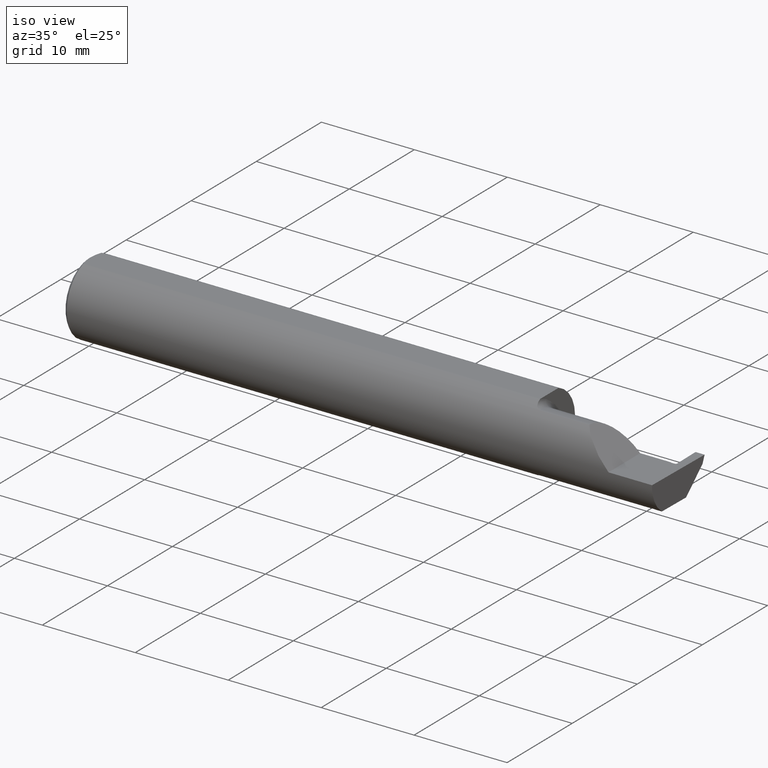
[diagram: clean part render]
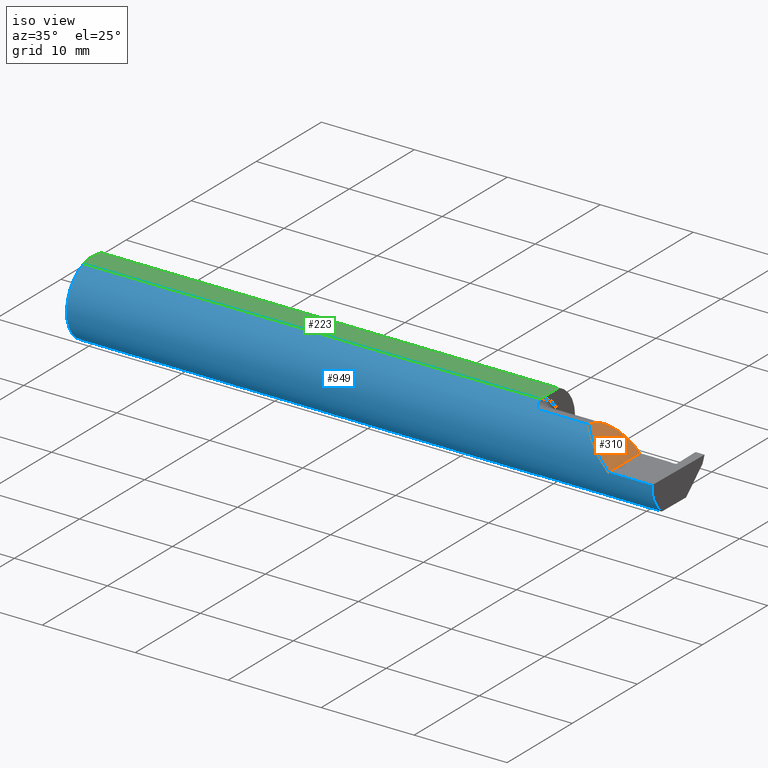
[diagram: same view with three faces highlighted in distinct colors, each labeled with its STEP entity id]
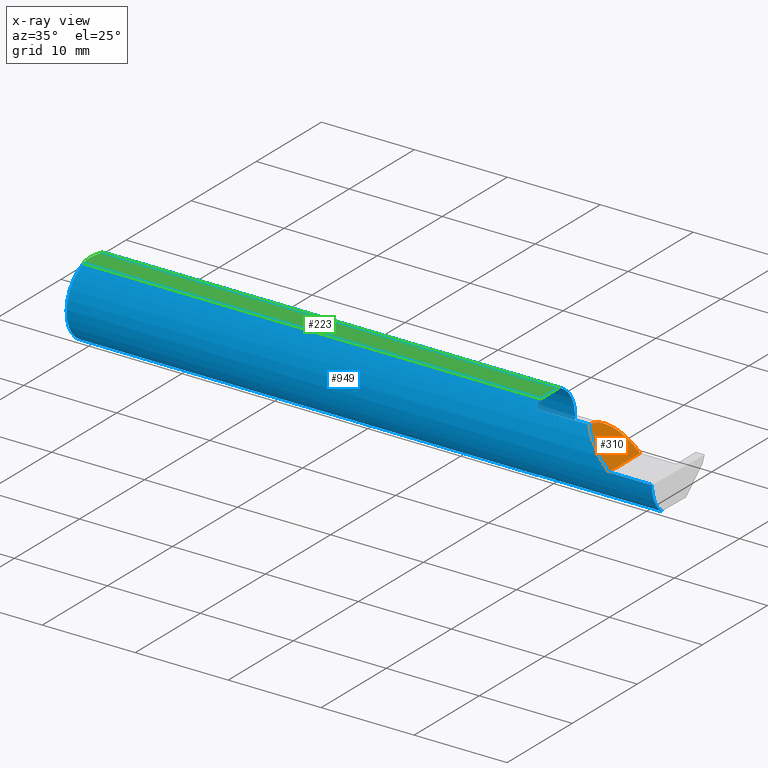
[diagram: x-ray of the same camera — body ghosted, the three highlighted faces saturated]
A machine part, iso view with three faces highlighted in distinct colors.
The next image is the same camera in x-ray (body ghosted, the three faces saturated) — at least one of them is partly hidden behind the body in this view.
Their STEP definitions:

[orange] entity #310 — the highlighted planar face has unit normal (-0.7071, 0, -0.7071).
#24 = CARTESIAN_POINT ( 'NONE',  ( 2.185081329771848768, -0.09360841750841755737, 0.1249186702281519651 ) ) ;
#46 = CARTESIAN_POINT ( 'NONE',  ( 2.310000000000000053, 0.03589999999999998748, 2.326828918379970872E-17 ) ) ;
#64 = CARTESIAN_POINT ( 'NONE',  ( 2.185000000000000941, -0.01587669529663685714, 0.1250000000000000278 ) ) ;
#117 = AXIS2_PLACEMENT_3D ( 'NONE', #573, #1000, #322 ) ;
#140 = EDGE_CURVE ( 'NONE', #263, #144, #164, .T. ) ;
#144 = VERTEX_POINT ( 'NONE', #24 ) ;
#146 = DIRECTION ( 'NONE',  ( -0.000000000000000000, 1.000000000000000000, -0.000000000000000000 ) ) ;
#164 =( BOUNDED_CURVE ( )  B_SPLINE_CURVE ( 3, ( #698, #194, #794, #1040 ),
 .UNSPECIFIED., .F., .T. ) 
 B_SPLINE_CURVE_WITH_KNOTS ( ( 4, 4 ),
 ( 4.712388980384689674, 5.640097190903853530 ),
 .UNSPECIFIED. ) 
 CURVE ( )  GEOMETRIC_REPRESENTATION_ITEM ( )  RATIONAL_B_SPLINE_CURVE ( ( 1.000000000000000000, 0.9295565493311498395, 0.9295565493311498395, 1.000000000000000000 ) ) 
 REPRESENTATION_ITEM ( '' )  );
#170 = VERTEX_POINT ( 'NONE', #46 ) ;
#175 = ORIENTED_EDGE ( 'NONE', *, *, #140, .F. ) ;
#194 = CARTESIAN_POINT ( 'NONE',  ( 2.259912409421232837, -0.1560999999999999888, 0.05008759057876772947 ) ) ;
#207 = EDGE_CURVE ( 'NONE', #1062, #170, #395, .T. ) ;
#242 = PLANE ( 'NONE',  #117 ) ;
#263 = VERTEX_POINT ( 'NONE', #973 ) ;
#310 = ADVANCED_FACE ( 'NONE', ( #329 ), #242, .F. ) ;
#312 = LINE ( 'NONE', #490, #786 ) ;
#322 = DIRECTION ( 'NONE',  ( -0.7071067811865459074, 0.000000000000000000, 0.7071067811865492381 ) ) ;
#329 = FACE_OUTER_BOUND ( 'NONE', #766, .T. ) ;
#330 = CARTESIAN_POINT ( 'NONE',  ( 2.185000000000000941, -0.09060321336276840054, 0.1250000000000000278 ) ) ;
#344 = EDGE_CURVE ( 'NONE', #263, #170, #312, .T. ) ;
#395 =( BOUNDED_CURVE ( )  B_SPLINE_CURVE ( 3, ( #810, #64, #741, #727 ),
 .UNSPECIFIED., .F., .F. ) 
 B_SPLINE_CURVE_WITH_KNOTS ( ( 4, 4 ),
 ( 0.000000000000000000, 1.570796326794896558 ),
 .UNSPECIFIED. ) 
 CURVE ( )  GEOMETRIC_REPRESENTATION_ITEM ( )  RATIONAL_B_SPLINE_CURVE ( ( 1.000000000000000000, 0.8047378541243649375, 0.8047378541243649375, 1.000000000000000000 ) ) 
 REPRESENTATION_ITEM ( '' )  );
#434 =( BOUNDED_CURVE ( )  B_SPLINE_CURVE ( 3, ( #750, #568, #330, #1065 ),
 .UNSPECIFIED., .F., .T. ) 
 B_SPLINE_CURVE_WITH_KNOTS ( ( 4, 4 ),
 ( 6.247110142813122380, 6.283185307179586232 ),
 .UNSPECIFIED. ) 
 CURVE ( )  GEOMETRIC_REPRESENTATION_ITEM ( )  RATIONAL_B_SPLINE_CURVE ( ( 1.000000000000000000, 0.9998915514833921492, 0.9998915514833921492, 1.000000000000000000 ) ) 
 REPRESENTATION_ITEM ( '' )  );
#488 = ORIENTED_EDGE ( 'NONE', *, *, #1024, .F. ) ;
#490 = CARTESIAN_POINT ( 'NONE',  ( 2.310000000000000053, -0.2000000000000000111, 2.326828918379970872E-17 ) ) ;
#568 = CARTESIAN_POINT ( 'NONE',  ( 2.185027112864299959, -0.09210618219364782866, 0.1249728871357007748 ) ) ;
#573 = CARTESIAN_POINT ( 'NONE',  ( 2.310000000000000053, -0.2000000000000000111, 2.326828918379970872E-17 ) ) ;
#698 = CARTESIAN_POINT ( 'NONE',  ( 2.310000000000000053, -0.1560999999999999888, 2.326828918379970872E-17 ) ) ;
#727 = CARTESIAN_POINT ( 'NONE',  ( 2.310000000000000053, 0.03589999999999998748, 2.326828918379970872E-17 ) ) ;
#741 = CARTESIAN_POINT ( 'NONE',  ( 2.236776695296637474, 0.03590000000000000829, 0.07322330470336313457 ) ) ;
#750 = CARTESIAN_POINT ( 'NONE',  ( 2.185081329771848768, -0.09360841750841755737, 0.1249186702281519651 ) ) ;
#766 = EDGE_LOOP ( 'NONE', ( #488, #175, #1021, #778 ) ) ;
#778 = ORIENTED_EDGE ( 'NONE', *, *, #207, .F. ) ;
#786 = VECTOR ( 'NONE', #146, 39.37007874015748143 ) ;
#794 = CARTESIAN_POINT ( 'NONE',  ( 2.215117332916550552, -0.1336908980339254205, 0.09488266708345004241 ) ) ;
#810 = CARTESIAN_POINT ( 'NONE',  ( 2.185000000000000941, -0.08909999999999998477, 0.1250000000000000000 ) ) ;
#973 = CARTESIAN_POINT ( 'NONE',  ( 2.310000000000000053, -0.1560999999999999888, 2.326828918379970872E-17 ) ) ;
#995 = CARTESIAN_POINT ( 'NONE',  ( 2.185000000000000941, -0.08909999999999998477, 0.1250000000000000000 ) ) ;
#1000 = DIRECTION ( 'NONE',  ( -0.7071067811865492381, 0.000000000000000000, -0.7071067811865459074 ) ) ;
#1021 = ORIENTED_EDGE ( 'NONE', *, *, #344, .T. ) ;
#1024 = EDGE_CURVE ( 'NONE', #144, #1062, #434, .T. ) ;
#1040 = CARTESIAN_POINT ( 'NONE',  ( 2.185081329771848768, -0.09360841750841755737, 0.1249186702281519651 ) ) ;
#1062 = VERTEX_POINT ( 'NONE', #995 ) ;
#1065 = CARTESIAN_POINT ( 'NONE',  ( 2.185000000000000941, -0.08909999999999998477, 0.1250000000000000000 ) ) ;

[blue] entity #949 — the highlighted cylindrical surface (partial cylindrical patch) has radius 3.9649 mm, axis along (-1, -0, -0).
#2 = CARTESIAN_POINT ( 'NONE',  ( 2.460758433086303043, -0.09641453430756345699, -0.1227658241297457653 ) ) ;
#4 = CARTESIAN_POINT ( 'NONE',  ( 1.949999999999999734, -0.05502817059483720158, 0.1460791239054557156 ) ) ;
#12 = CARTESIAN_POINT ( 'NONE',  ( 1.949999999999999734, -0.05502817059483720158, -0.1460791239054557156 ) ) ;
#24 = CARTESIAN_POINT ( 'NONE',  ( 2.185081329771848768, -0.09360841750841755737, 0.1249186702281519651 ) ) ;
#30 = EDGE_CURVE ( 'NONE', #570, #692, #465, .T. ) ;
#42 = EDGE_CURVE ( 'NONE', #625, #933, #754, .T. ) ;
#59 = ORIENTED_EDGE ( 'NONE', *, *, #895, .F. ) ;
#61 = CARTESIAN_POINT ( 'NONE',  ( 2.444883274121979699, -0.09430675028159224427, -0.1243953711434615111 ) ) ;
#63 = B_SPLINE_CURVE_WITH_KNOTS ( 'NONE', 3,
 ( #420, #345, #682, #1020 ),
 .UNSPECIFIED., .F., .F.,
 ( 4, 4 ),
 ( 1.958690481382186847E-07, 0.0003463854958010656741 ),
 .UNSPECIFIED. ) ;
#69 = CARTESIAN_POINT ( 'NONE',  ( 2.493277140361873201, -0.1561000000000000165, -0.05008759057876776416 ) ) ;
#76 = CARTESIAN_POINT ( 'NONE',  ( 2.455151538110904585, -0.09614405354417178418, -0.1229778195475450392 ) ) ;
#77 = ORIENTED_EDGE ( 'NONE', *, *, #878, .F. ) ;
#78 = B_SPLINE_CURVE_WITH_KNOTS ( 'NONE', 3,
 ( #274, #885, #61, #566 ),
 .UNSPECIFIED., .F., .F.,
 ( 4, 4 ),
 ( 5.293749646857445613E-18, 7.520689195611335071E-05 ),
 .UNSPECIFIED. ) ;
#84 = CARTESIAN_POINT ( 'NONE',  ( 1.960319203512566055, -0.08709887368156789267, 0.1295644080582773749 ) ) ;
#96 = DIRECTION ( 'NONE',  ( 1.000000000000000000, 0.000000000000000000, 0.000000000000000000 ) ) ;
#104 = EDGE_CURVE ( 'NONE', #833, #625, #477, .T. ) ;
#105 = CARTESIAN_POINT ( 'NONE',  ( 2.494588929872255001, -0.1561000000000000443, 0.000000000000000000 ) ) ;
#115 = CARTESIAN_POINT ( 'NONE',  ( 1.949999999999999734, -0.05502817059483720158, 0.1460791239054557156 ) ) ;
#122 = VERTEX_POINT ( 'NONE', #546 ) ;
#126 = CARTESIAN_POINT ( 'NONE',  ( 2.460758433086303043, -0.09641453430756345699, -0.1227658241297457653 ) ) ;
#140 = EDGE_CURVE ( 'NONE', #263, #144, #164, .T. ) ;
#144 = VERTEX_POINT ( 'NONE', #24 ) ;
#149 = LINE ( 'NONE', #1066, #256 ) ;
#150 = VERTEX_POINT ( 'NONE', #115 ) ;
#156 = DIRECTION ( 'NONE',  ( -1.000000000000000000, -0.000000000000000000, -0.000000000000000000 ) ) ;
#164 =( BOUNDED_CURVE ( )  B_SPLINE_CURVE ( 3, ( #698, #194, #794, #1040 ),
 .UNSPECIFIED., .F., .T. ) 
 B_SPLINE_CURVE_WITH_KNOTS ( ( 4, 4 ),
 ( 4.712388980384689674, 5.640097190903853530 ),
 .UNSPECIFIED. ) 
 CURVE ( )  GEOMETRIC_REPRESENTATION_ITEM ( )  RATIONAL_B_SPLINE_CURVE ( ( 1.000000000000000000, 0.9295565493311498395, 0.9295565493311498395, 1.000000000000000000 ) ) 
 REPRESENTATION_ITEM ( '' )  );
#177 = CARTESIAN_POINT ( 'NONE',  ( 2.453282581884050462, -0.09605366783568212996, -0.1230484297883021605 ) ) ;
#180 = AXIS2_PLACEMENT_3D ( 'NONE', #1043, #212, #615 ) ;
#181 = CARTESIAN_POINT ( 'NONE',  ( 2.460758433086303043, -0.09641453430756345699, -0.1227658241297457653 ) ) ;
#184 = EDGE_CURVE ( 'NONE', #439, #188, #149, .T. ) ;
#188 = VERTEX_POINT ( 'NONE', #1053 ) ;
#189 = CIRCLE ( 'NONE', #1009, 0.1560999999999999888 ) ;
#190 = EDGE_CURVE ( 'NONE', #818, #263, #822, .T. ) ;
#194 = CARTESIAN_POINT ( 'NONE',  ( 2.259912409421232837, -0.1560999999999999888, 0.05008759057876772947 ) ) ;
#195 = AXIS2_PLACEMENT_3D ( 'NONE', #516, #96, #757 ) ;
#200 = EDGE_CURVE ( 'NONE', #1032, #144, #317, .T. ) ;
#203 = ORIENTED_EDGE ( 'NONE', *, *, #979, .F. ) ;
#212 = DIRECTION ( 'NONE',  ( -1.000000000000000000, -0.000000000000000000, -0.000000000000000000 ) ) ;
#216 = VERTEX_POINT ( 'NONE', #722 ) ;
#243 = CARTESIAN_POINT ( 'NONE',  ( 1.974999999999999867, -0.09360841750841747411, 0.1249186702281520206 ) ) ;
#256 = VECTOR ( 'NONE', #487, 39.37007874015748143 ) ;
#257 = CARTESIAN_POINT ( 'NONE',  ( 2.451413631736417464, -0.09596312630643989705, -0.1231190009279407582 ) ) ;
#260 = CARTESIAN_POINT ( 'NONE',  ( 1.949999999999999512, -0.06156212810510084538, 0.1436177747480845979 ) ) ;
#262 = CARTESIAN_POINT ( 'NONE',  ( 2.457020500426053911, -0.09623428318624049904, -0.1229071712294707436 ) ) ;
#263 = VERTEX_POINT ( 'NONE', #973 ) ;
#264 = CYLINDRICAL_SURFACE ( 'NONE', #705, 0.1560999999999999888 ) ;
#274 = CARTESIAN_POINT ( 'NONE',  ( 2.445806799314936164, -0.09569103450145266532, -0.1233305960256488032 ) ) ;
#282 = CARTESIAN_POINT ( 'NONE',  ( 2.465372530024502407, -0.09436784564007082154, -0.1243495890372814661 ) ) ;
#293 = CARTESIAN_POINT ( 'NONE',  ( 3.749399456654646757E-32, -0.1560999999999999888, 3.061616997868384127E-16 ) ) ;
#313 = CARTESIAN_POINT ( 'NONE',  ( 2.492495113650786021, -0.1336908980339254205, -0.09488266708345007017 ) ) ;
#314 = ORIENTED_EDGE ( 'NONE', *, *, #184, .F. ) ;
#317 = LINE ( 'NONE', #396, #875 ) ;
#321 = EDGE_CURVE ( 'NONE', #608, #1032, #502, .T. ) ;
#326 = CARTESIAN_POINT ( 'NONE',  ( 2.445806799314936164, -0.09569103450145266532, -0.1233305960256488032 ) ) ;
#328 = B_SPLINE_CURVE_WITH_KNOTS ( 'NONE', 3,
 ( #1072, #665, #1006, #481, #740, #590, #919, #496 ),
 .UNSPECIFIED., .F., .F.,
 ( 4, 2, 2, 4 ),
 ( 0.0003463854958010656741, 0.0006107451645895129117, 0.0008751048333779602034, 0.001403824170954859774 ),
 .UNSPECIFIED. ) ;
#333 = CARTESIAN_POINT ( 'NONE',  ( 2.444421270371395227, -0.09360841750841732145, -0.1249186702281520206 ) ) ;
#336 = ORIENTED_EDGE ( 'NONE', *, *, #190, .T. ) ;
#339 = CARTESIAN_POINT ( 'NONE',  ( 0.01499999999999999944, 0.000000000000000000, -0.1560999999999999888 ) ) ;
#340 = CARTESIAN_POINT ( 'NONE',  ( 1.950844056398637116, -0.06777540567362902446, 0.1407770456887921517 ) ) ;
#345 = CARTESIAN_POINT ( 'NONE',  ( 1.970361275910303522, -0.09360841750841759901, -0.1249186702281519512 ) ) ;
#362 = CARTESIAN_POINT ( 'NONE',  ( 2.462958620952170552, -0.09612681111944289258, -0.1229930763061728438 ) ) ;
#369 = ORIENTED_EDGE ( 'NONE', *, *, #681, .F. ) ;
#371 = CARTESIAN_POINT ( 'NONE',  ( 2.215749999999999886, -0.09360841750841747411, -0.1249186702281520206 ) ) ;
#378 = CIRCLE ( 'NONE', #180, 0.1560999999999999888 ) ;
#396 = CARTESIAN_POINT ( 'NONE',  ( 2.215749999999999886, -0.09360841750841747411, 0.1249186702281520206 ) ) ;
#408 = CARTESIAN_POINT ( 'NONE',  ( 2.465920927715513855, -0.09360841750841732145, -0.1249186702281520484 ) ) ;
#420 = CARTESIAN_POINT ( 'NONE',  ( 1.974999999999999867, -0.09360841750841744635, -0.1249186702281520206 ) ) ;
#429 = DIRECTION ( 'NONE',  ( -1.000000000000000000, -0.000000000000000000, -0.000000000000000000 ) ) ;
#439 = VERTEX_POINT ( 'NONE', #333 ) ;
#440 = CARTESIAN_POINT ( 'NONE',  ( 0.01499999999999999944, 0.000000000000000000, 0.000000000000000000 ) ) ;
#443 = ORIENTED_EDGE ( 'NONE', *, *, #321, .F. ) ;
#446 = CARTESIAN_POINT ( 'NONE',  ( 2.461870861435892621, -0.09646811579188419028, -0.1227237437389290531 ) ) ;
#460 = EDGE_CURVE ( 'NONE', #150, #608, #529, .T. ) ;
#465 = CIRCLE ( 'NONE', #195, 0.1560999999999999888 ) ;
#471 = ORIENTED_EDGE ( 'NONE', *, *, #200, .F. ) ;
#473 = DIRECTION ( 'NONE',  ( 1.000000000000000000, 0.000000000000000000, 0.000000000000000000 ) ) ;
#477 = B_SPLINE_CURVE_WITH_KNOTS ( 'NONE', 3,
 ( #947, #282, #704, #362, #446, #126 ),
 .UNSPECIFIED., .F., .F.,
 ( 4, 2, 4 ),
 ( 0.0002236889353495204289, 0.0003060019729275876427, 0.0003883150105056549107 ),
 .UNSPECIFIED. ) ;
#479 = CARTESIAN_POINT ( 'NONE',  ( 0.000000000000000000, 0.05497272050753900657, 0.1460999999999999799 ) ) ;
#481 = CARTESIAN_POINT ( 'NONE',  ( 1.955057722617701499, -0.07943655142502265010, -0.1344116409581927740 ) ) ;
#487 = DIRECTION ( 'NONE',  ( -1.000000000000000000, -0.000000000000000000, -0.000000000000000000 ) ) ;
#495 = CARTESIAN_POINT ( 'NONE',  ( 1.962810002172222568, -0.08909999999984934138, 0.1281733201569306146 ) ) ;
#496 = CARTESIAN_POINT ( 'NONE',  ( 1.949999999999999734, -0.05502817059483720158, -0.1460791239054557156 ) ) ;
#502 = B_SPLINE_CURVE_WITH_KNOTS ( 'NONE', 3,
 ( #495, #820, #749, #589 ),
 .UNSPECIFIED., .F., .F.,
 ( 4, 4 ),
 ( 0.001050593969402363994, 0.001393966686689414704 ),
 .UNSPECIFIED. ) ;
#506 = ORIENTED_EDGE ( 'NONE', *, *, #603, .F. ) ;
#508 = CARTESIAN_POINT ( 'NONE',  ( 1.953785422859119603, -0.07659497035394365050, 0.1360571150960169506 ) ) ;
#516 = CARTESIAN_POINT ( 'NONE',  ( 1.949999999999999734, 0.000000000000000000, 0.000000000000000000 ) ) ;
#526 = ORIENTED_EDGE ( 'NONE', *, *, #824, .F. ) ;
#529 = B_SPLINE_CURVE_WITH_KNOTS ( 'NONE', 3,
 ( #4, #260, #340, #508, #689, #932, #84, #1017 ),
 .UNSPECIFIED., .F., .F.,
 ( 4, 2, 2, 4 ),
 ( 2.042507625483139074E-06, 0.0005263182385139235754, 0.0007884561039581438387, 0.001050593969402363994 ),
 .UNSPECIFIED. ) ;
#541 = ORIENTED_EDGE ( 'NONE', *, *, #42, .F. ) ;
#542 = LINE ( 'NONE', #371, #1048 ) ;
#546 = CARTESIAN_POINT ( 'NONE',  ( 0.01499999999999999771, 0.05497272050753900657, 0.1460999999999999799 ) ) ;
#560 = CARTESIAN_POINT ( 'NONE',  ( 0.000000000000000000, -0.05497272050753900657, 0.1460999999999999799 ) ) ;
#566 = CARTESIAN_POINT ( 'NONE',  ( 2.444421270371395227, -0.09360841750841732145, -0.1249186702281520206 ) ) ;
#570 = VERTEX_POINT ( 'NONE', #12 ) ;
#589 = CARTESIAN_POINT ( 'NONE',  ( 1.974999999999999867, -0.09360841750841747411, 0.1249186702281520206 ) ) ;
#590 = CARTESIAN_POINT ( 'NONE',  ( 1.950847904676645150, -0.06780574120017830719, -0.1407631332654325773 ) ) ;
#595 = CARTESIAN_POINT ( 'NONE',  ( 2.447675737396382001, -0.09578188742118470822, -0.1232601041107730250 ) ) ;
#601 = ORIENTED_EDGE ( 'NONE', *, *, #1060, .T. ) ;
#603 = EDGE_CURVE ( 'NONE', #188, #884, #63, .T. ) ;
#608 = VERTEX_POINT ( 'NONE', #855 ) ;
#615 = DIRECTION ( 'NONE',  ( 0.000000000000000000, 0.000000000000000000, 1.000000000000000000 ) ) ;
#625 = VERTEX_POINT ( 'NONE', #181 ) ;
#630 = ORIENTED_EDGE ( 'NONE', *, *, #30, .F. ) ;
#637 = AXIS2_PLACEMENT_3D ( 'NONE', #440, #429, #860 ) ;
#648 = EDGE_CURVE ( 'NONE', #122, #991, #378, .T. ) ;
#658 = ORIENTED_EDGE ( 'NONE', *, *, #870, .F. ) ;
#665 = CARTESIAN_POINT ( 'NONE',  ( 1.960315048287043505, -0.08709553534231938288, -0.1295667287130568279 ) ) ;
#668 = VECTOR ( 'NONE', #473, 39.37007874015748143 ) ;
#681 = EDGE_CURVE ( 'NONE', #746, #833, #542, .T. ) ;
#682 = CARTESIAN_POINT ( 'NONE',  ( 1.966077244708472893, -0.09172492714866099794, -0.1263485955677197681 ) ) ;
#689 = CARTESIAN_POINT ( 'NONE',  ( 1.955056522840238342, -0.07943464720522702693, 0.1344128205797975040 ) ) ;
#692 = VERTEX_POINT ( 'NONE', #876 ) ;
#698 = CARTESIAN_POINT ( 'NONE',  ( 2.310000000000000053, -0.1560999999999999888, 2.326828918379970872E-17 ) ) ;
#704 = CARTESIAN_POINT ( 'NONE',  ( 2.464692907515819265, -0.09506543444703710599, -0.1238152809981272195 ) ) ;
#705 = AXIS2_PLACEMENT_3D ( 'NONE', #1026, #1016, #850 ) ;
#722 = CARTESIAN_POINT ( 'NONE',  ( 0.01499999999999999944, -0.05497272050753900657, 0.1460999999999999799 ) ) ;
#736 = EDGE_LOOP ( 'NONE', ( #369, #601, #336, #1047, #471, #443, #916, #77, #658, #203, #758, #59, #630, #1074, #506, #314, #526, #541, #1007 ) ) ;
#740 = CARTESIAN_POINT ( 'NONE',  ( 1.953804698179400168, -0.07664326672408301733, -0.1360300949145557547 ) ) ;
#746 = VERTEX_POINT ( 'NONE', #962 ) ;
#748 = LINE ( 'NONE', #560, #668 ) ;
#749 = CARTESIAN_POINT ( 'NONE',  ( 1.970364775055372553, -0.09360841750841757125, 0.1249186702281519512 ) ) ;
#754 = B_SPLINE_CURVE_WITH_KNOTS ( 'NONE', 3,
 ( #2, #1018, #1087, #262, #76, #177, #257, #1002, #595, #326 ),
 .UNSPECIFIED., .F., .F.,
 ( 4, 3, 3, 4 ),
 ( 0.000000000000000000, 9.512159278853818574E-05, 0.0002378039862949639675, 0.0003804863840084716435 ),
 .UNSPECIFIED. ) ;
#757 = DIRECTION ( 'NONE',  ( 0.000000000000000000, 0.000000000000000000, -1.000000000000000000 ) ) ;
#758 = ORIENTED_EDGE ( 'NONE', *, *, #648, .F. ) ;
#767 = FACE_OUTER_BOUND ( 'NONE', #736, .T. ) ;
#794 = CARTESIAN_POINT ( 'NONE',  ( 2.215117332916550552, -0.1336908980339254205, 0.09488266708345004241 ) ) ;
#798 = DIRECTION ( 'NONE',  ( -1.000000000000000000, -0.000000000000000000, -0.000000000000000000 ) ) ;
#818 = VERTEX_POINT ( 'NONE', #105 ) ;
#819 = DIRECTION ( 'NONE',  ( 0.000000000000000000, 0.000000000000000000, -1.000000000000000000 ) ) ;
#820 = CARTESIAN_POINT ( 'NONE',  ( 1.966072683443917946, -0.09172126259464279119, 0.1263511429915041839 ) ) ;
#822 = LINE ( 'NONE', #293, #927 ) ;
#824 = EDGE_CURVE ( 'NONE', #933, #439, #78, .T. ) ;
#825 = DIRECTION ( 'NONE',  ( 1.000000000000000000, 0.000000000000000000, 0.000000000000000000 ) ) ;
#827 = CARTESIAN_POINT ( 'NONE',  ( 2.494588929872255001, -0.1561000000000000443, 0.000000000000000000 ) ) ;
#833 = VERTEX_POINT ( 'NONE', #408 ) ;
#850 = DIRECTION ( 'NONE',  ( 0.000000000000000000, 0.000000000000000000, 1.000000000000000000 ) ) ;
#855 = CARTESIAN_POINT ( 'NONE',  ( 1.962810002172222568, -0.08909999999984934138, 0.1281733201569306146 ) ) ;
#860 = DIRECTION ( 'NONE',  ( 0.000000000000000000, 0.000000000000000000, 1.000000000000000000 ) ) ;
#870 = EDGE_CURVE ( 'NONE', #216, #960, #748, .T. ) ;
#875 = VECTOR ( 'NONE', #1080, 39.37007874015748143 ) ;
#876 = CARTESIAN_POINT ( 'NONE',  ( 1.949999999999999734, 0.05497272050753900657, 0.1460999999999999799 ) ) ;
#878 = EDGE_CURVE ( 'NONE', #960, #150, #189, .T. ) ;
#884 = VERTEX_POINT ( 'NONE', #1069 ) ;
#885 = CARTESIAN_POINT ( 'NONE',  ( 2.445345111343429245, -0.09500096213625153219, -0.1238660165995770224 ) ) ;
#888 = DIRECTION ( 'NONE',  ( -1.000000000000000000, -0.000000000000000000, -0.000000000000000000 ) ) ;
#895 = EDGE_CURVE ( 'NONE', #692, #122, #1088, .T. ) ;
#914 = CARTESIAN_POINT ( 'NONE',  ( 1.949999999999999734, 0.000000000000000000, 0.000000000000000000 ) ) ;
#916 = ORIENTED_EDGE ( 'NONE', *, *, #460, .F. ) ;
#917 = VECTOR ( 'NONE', #156, 39.37007874015748143 ) ;
#919 = CARTESIAN_POINT ( 'NONE',  ( 1.949999999999997957, -0.06152246774674050706, -0.1436327148497734685 ) ) ;
#927 = VECTOR ( 'NONE', #888, 39.37007874015748143 ) ;
#932 = CARTESIAN_POINT ( 'NONE',  ( 1.958314215045238837, -0.08466760255782122824, 0.1311795204669789217 ) ) ;
#933 = VERTEX_POINT ( 'NONE', #998 ) ;
#940 = CARTESIAN_POINT ( 'NONE',  ( 1.949999999999999734, -0.05497272050753899270, 0.1460999999999999799 ) ) ;
#947 = CARTESIAN_POINT ( 'NONE',  ( 2.465920927715513855, -0.09360841750841732145, -0.1249186702281520484 ) ) ;
#949 = ADVANCED_FACE ( 'NONE', ( #767 ), #264, .T. ) ;
#960 = VERTEX_POINT ( 'NONE', #940 ) ;
#962 = CARTESIAN_POINT ( 'NONE',  ( 2.492408115719126460, -0.09360841750841747411, -0.1249186702281520206 ) ) ;
#970 = CIRCLE ( 'NONE', #637, 0.1560999999999999888 ) ;
#973 = CARTESIAN_POINT ( 'NONE',  ( 2.310000000000000053, -0.1560999999999999888, 2.326828918379970872E-17 ) ) ;
#979 = EDGE_CURVE ( 'NONE', #991, #216, #970, .T. ) ;
#991 = VERTEX_POINT ( 'NONE', #339 ) ;
#998 = CARTESIAN_POINT ( 'NONE',  ( 2.445806799314936164, -0.09569103450145266532, -0.1233305960256488032 ) ) ;
#1001 = CARTESIAN_POINT ( 'NONE',  ( 2.492408115719126460, -0.09360841750841747411, -0.1249186702281520206 ) ) ;
#1002 = CARTESIAN_POINT ( 'NONE',  ( 2.449544681533677881, -0.09587258477452799410, -0.1231895720696601915 ) ) ;
#1006 = CARTESIAN_POINT ( 'NONE',  ( 1.958312875394041974, -0.08466547365232439393, -0.1311808389156051691 ) ) ;
#1007 = ORIENTED_EDGE ( 'NONE', *, *, #104, .F. ) ;
#1009 = AXIS2_PLACEMENT_3D ( 'NONE', #914, #825, #819 ) ;
#1016 = DIRECTION ( 'NONE',  ( -1.000000000000000000, -0.000000000000000000, -0.000000000000000000 ) ) ;
#1017 = CARTESIAN_POINT ( 'NONE',  ( 1.962810002172222568, -0.08909999999984934138, 0.1281733201569306146 ) ) ;
#1018 = CARTESIAN_POINT ( 'NONE',  ( 2.459512452820178385, -0.09635452000985572640, -0.1228129565512181276 ) ) ;
#1020 = CARTESIAN_POINT ( 'NONE',  ( 1.962810002172886259, -0.08909999999996048858, -0.1281733201567834268 ) ) ;
#1026 = CARTESIAN_POINT ( 'NONE',  ( 0.000000000000000000, 0.000000000000000000, 0.000000000000000000 ) ) ;
#1032 = VERTEX_POINT ( 'NONE', #243 ) ;
#1040 = CARTESIAN_POINT ( 'NONE',  ( 2.185081329771848768, -0.09360841750841755737, 0.1249186702281519651 ) ) ;
#1042 = EDGE_CURVE ( 'NONE', #884, #570, #328, .T. ) ;
#1043 = CARTESIAN_POINT ( 'NONE',  ( 0.01499999999999999944, 0.000000000000000000, 0.000000000000000000 ) ) ;
#1047 = ORIENTED_EDGE ( 'NONE', *, *, #140, .T. ) ;
#1048 = VECTOR ( 'NONE', #798, 39.37007874015748143 ) ;
#1053 = CARTESIAN_POINT ( 'NONE',  ( 1.974999999999999867, -0.09360841750841744635, -0.1249186702281520206 ) ) ;
#1060 = EDGE_CURVE ( 'NONE', #746, #818, #1076, .T. ) ;
#1066 = CARTESIAN_POINT ( 'NONE',  ( 2.215749999999999886, -0.09360841750841747411, -0.1249186702281520206 ) ) ;
#1069 = CARTESIAN_POINT ( 'NONE',  ( 1.962810002172886259, -0.08909999999996048858, -0.1281733201567834268 ) ) ;
#1072 = CARTESIAN_POINT ( 'NONE',  ( 1.962810002172886259, -0.08909999999996048858, -0.1281733201567834268 ) ) ;
#1074 = ORIENTED_EDGE ( 'NONE', *, *, #1042, .F. ) ;
#1076 =( BOUNDED_CURVE ( )  B_SPLINE_CURVE ( 3, ( #1001, #313, #69, #827 ),
 .UNSPECIFIED., .F., .F. ) 
 B_SPLINE_CURVE_WITH_KNOTS ( ( 4, 4 ),
 ( 0.05521439950980804034, 0.9829226100289724100 ),
 .UNSPECIFIED. ) 
 CURVE ( )  GEOMETRIC_REPRESENTATION_ITEM ( )  RATIONAL_B_SPLINE_CURVE ( ( 1.000000000000000000, 0.9295565493311498395, 0.9295565493311498395, 1.000000000000000000 ) ) 
 REPRESENTATION_ITEM ( '' )  );
#1080 = DIRECTION ( 'NONE',  ( 1.000000000000000000, 0.000000000000000000, 0.000000000000000000 ) ) ;
#1087 = CARTESIAN_POINT ( 'NONE',  ( 2.458266475267615991, -0.09629443627925335369, -0.1228600723520853061 ) ) ;
#1088 = LINE ( 'NONE', #479, #917 ) ;

[green] entity #223 — the highlighted planar face has unit normal (0, -0, 1).
#41 = VERTEX_POINT ( 'NONE', #347 ) ;
#122 = VERTEX_POINT ( 'NONE', #546 ) ;
#156 = DIRECTION ( 'NONE',  ( -1.000000000000000000, -0.000000000000000000, -0.000000000000000000 ) ) ;
#216 = VERTEX_POINT ( 'NONE', #722 ) ;
#220 = CARTESIAN_POINT ( 'NONE',  ( 0.004999999999999936787, 2.057148927093534050E-17, 0.1460999999999999799 ) ) ;
#223 = ADVANCED_FACE ( 'NONE', ( #657 ), #983, .T. ) ;
#229 = EDGE_CURVE ( 'NONE', #122, #41, #301, .T. ) ;
#237 = DIRECTION ( 'NONE',  ( 0.000000000000000000, -0.000000000000000000, 1.000000000000000000 ) ) ;
#265 = CARTESIAN_POINT ( 'NONE',  ( 0.01499999999999999944, -0.05497272050753900657, 0.1460999999999999799 ) ) ;
#299 = CARTESIAN_POINT ( 'NONE',  ( 0.01187749995209270472, 0.04610609988228752537, 0.1460999999999999799 ) ) ;
#301 = B_SPLINE_CURVE_WITH_KNOTS ( 'NONE', 3,
 ( #556, #299, #910, #899, #464, #220 ),
 .UNSPECIFIED., .F., .F.,
 ( 4, 2, 4 ),
 ( 0.003294562426666346362, 0.003999440028384116178, 0.004704317630101885993 ),
 .UNSPECIFIED. ) ;
#338 = ORIENTED_EDGE ( 'NONE', *, *, #870, .T. ) ;
#347 = CARTESIAN_POINT ( 'NONE',  ( 0.004999999999999936787, 2.057148927093534050E-17, 0.1460999999999999799 ) ) ;
#427 = ORIENTED_EDGE ( 'NONE', *, *, #895, .T. ) ;
#441 = CARTESIAN_POINT ( 'NONE',  ( 0.01190375560897317594, -0.04618065518901644934, 0.1460999999999999799 ) ) ;
#447 = ORIENTED_EDGE ( 'NONE', *, *, #904, .T. ) ;
#464 = CARTESIAN_POINT ( 'NONE',  ( 0.004999999999999902960, 0.009391435229055663386, 0.1460999999999999799 ) ) ;
#466 = EDGE_LOOP ( 'NONE', ( #338, #447, #427, #685, #547 ) ) ;
#473 = DIRECTION ( 'NONE',  ( 1.000000000000000000, 0.000000000000000000, 0.000000000000000000 ) ) ;
#479 = CARTESIAN_POINT ( 'NONE',  ( 0.000000000000000000, 0.05497272050753900657, 0.1460999999999999799 ) ) ;
#546 = CARTESIAN_POINT ( 'NONE',  ( 0.01499999999999999771, 0.05497272050753900657, 0.1460999999999999799 ) ) ;
#547 = ORIENTED_EDGE ( 'NONE', *, *, #614, .T. ) ;
#556 = CARTESIAN_POINT ( 'NONE',  ( 0.01499999999999999771, 0.05497272050753900657, 0.1460999999999999799 ) ) ;
#560 = CARTESIAN_POINT ( 'NONE',  ( 0.000000000000000000, -0.05497272050753900657, 0.1460999999999999799 ) ) ;
#597 = AXIS2_PLACEMENT_3D ( 'NONE', #996, #237, #1061 ) ;
#614 = EDGE_CURVE ( 'NONE', #41, #216, #776, .T. ) ;
#643 = DIRECTION ( 'NONE',  ( -0.000000000000000000, 1.000000000000000000, 0.000000000000000000 ) ) ;
#657 = FACE_OUTER_BOUND ( 'NONE', #466, .T. ) ;
#663 = CARTESIAN_POINT ( 'NONE',  ( 1.949999999999999734, -0.1561000000000000165, 0.1460999999999999799 ) ) ;
#668 = VECTOR ( 'NONE', #473, 39.37007874015748143 ) ;
#669 = CARTESIAN_POINT ( 'NONE',  ( 0.004999999999999897755, -0.009384304010803548590, 0.1460999999999999521 ) ) ;
#685 = ORIENTED_EDGE ( 'NONE', *, *, #229, .T. ) ;
#686 = CARTESIAN_POINT ( 'NONE',  ( 0.004999999999999936787, 2.057148927093534050E-17, 0.1460999999999999799 ) ) ;
#692 = VERTEX_POINT ( 'NONE', #876 ) ;
#722 = CARTESIAN_POINT ( 'NONE',  ( 0.01499999999999999944, -0.05497272050753900657, 0.1460999999999999799 ) ) ;
#748 = LINE ( 'NONE', #560, #668 ) ;
#760 = CARTESIAN_POINT ( 'NONE',  ( 0.009356849677355947789, -0.03706298561014172849, 0.1460999999999999799 ) ) ;
#776 = B_SPLINE_CURVE_WITH_KNOTS ( 'NONE', 3,
 ( #686, #669, #1010, #760, #441, #265 ),
 .UNSPECIFIED., .F., .F.,
 ( 4, 2, 4 ),
 ( 0.004704317630101885993, 0.005408659995628783967, 0.006113002361155681942 ),
 .UNSPECIFIED. ) ;
#812 = VECTOR ( 'NONE', #643, 39.37007874015748143 ) ;
#813 = LINE ( 'NONE', #663, #812 ) ;
#870 = EDGE_CURVE ( 'NONE', #216, #960, #748, .T. ) ;
#876 = CARTESIAN_POINT ( 'NONE',  ( 1.949999999999999734, 0.05497272050753900657, 0.1460999999999999799 ) ) ;
#895 = EDGE_CURVE ( 'NONE', #692, #122, #1088, .T. ) ;
#899 = CARTESIAN_POINT ( 'NONE',  ( 0.005929349363808920914, 0.01879672308419500643, 0.1460999999999999799 ) ) ;
#904 = EDGE_CURVE ( 'NONE', #960, #692, #813, .T. ) ;
#910 = CARTESIAN_POINT ( 'NONE',  ( 0.009371209226503902576, 0.03711161584255317364, 0.1461000000000000076 ) ) ;
#917 = VECTOR ( 'NONE', #156, 39.37007874015748143 ) ;
#940 = CARTESIAN_POINT ( 'NONE',  ( 1.949999999999999734, -0.05497272050753899270, 0.1460999999999999799 ) ) ;
#960 = VERTEX_POINT ( 'NONE', #940 ) ;
#983 = PLANE ( 'NONE',  #597 ) ;
#996 = CARTESIAN_POINT ( 'NONE',  ( 2.500000000000000000, -0.1561000000000000165, 0.1460999999999999799 ) ) ;
#1010 = CARTESIAN_POINT ( 'NONE',  ( 0.005910707775482238607, -0.01866948012536270504, 0.1461000000000000076 ) ) ;
#1061 = DIRECTION ( 'NONE',  ( 1.000000000000000000, 0.000000000000000000, -0.000000000000000000 ) ) ;
#1088 = LINE ( 'NONE', #479, #917 ) ;